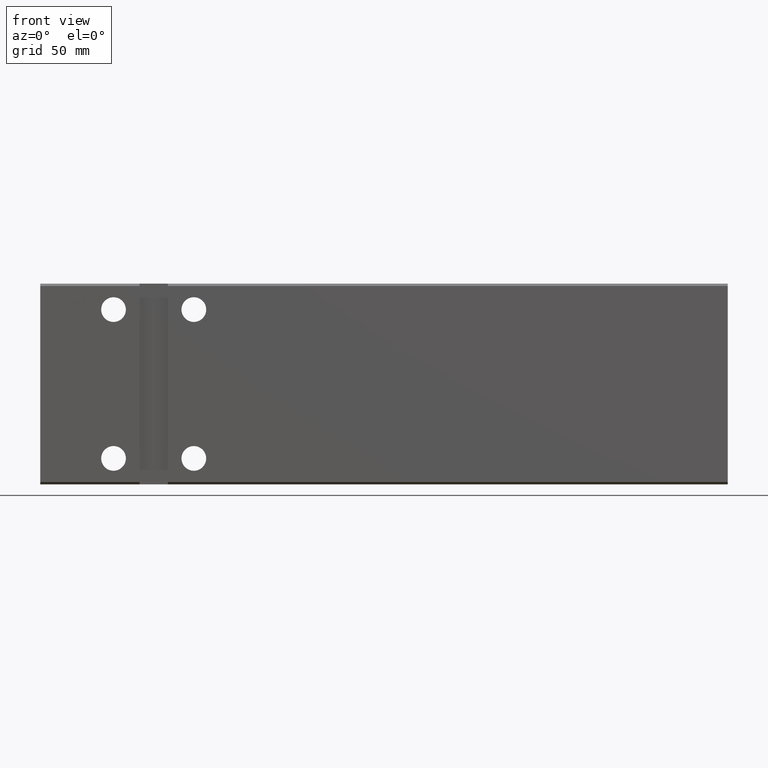
[diagram: clean part render]
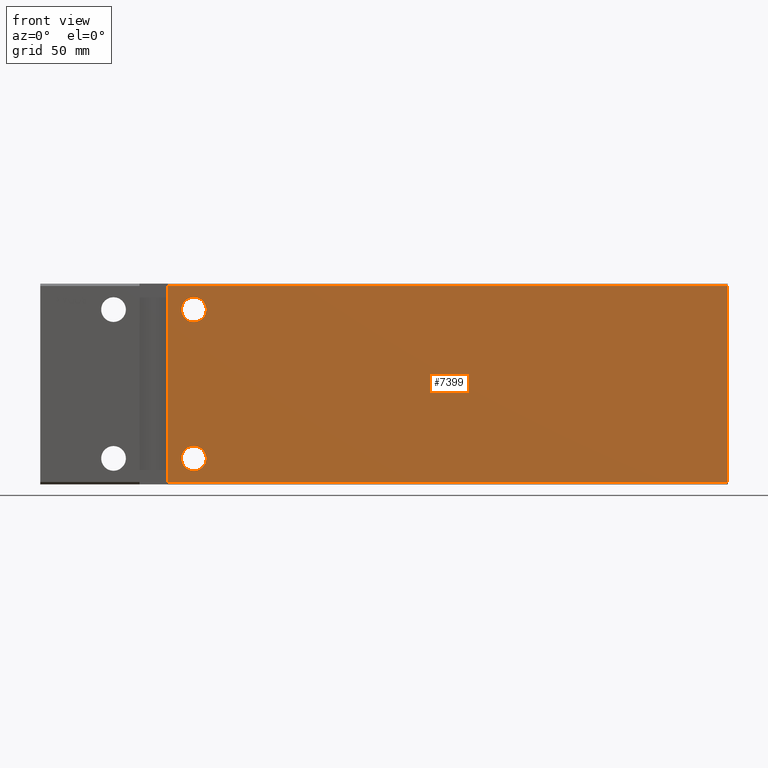
[diagram: same view with one face highlighted and labeled with its STEP entity id]
A machine part, front view. The second image highlights one B-rep face of the part: STEP entity #7399.
In plain terms, the highlighted planar face has unit normal (-0, 1, 0).
Its self-contained STEP definition (entity closure, byte-faithful):
#1200 = CARTESIAN_POINT ( 'NONE',  ( 291.0000000000000000, -31.50000000000000000, 41.49999999999999289 ) ) ;
#2403 = EDGE_CURVE ( 'NONE', #3532, #38642, #20256, .T. ) ;
#3532 = VERTEX_POINT ( 'NONE', #41223 ) ;
#3580 = FACE_OUTER_BOUND ( 'NONE', #14030, .T. ) ;
#3786 = DIRECTION ( 'NONE',  ( 0.000000000000000000, -0.000000000000000000, 1.000000000000000000 ) ) ;
#4414 = CARTESIAN_POINT ( 'NONE',  ( 291.0000000000000000, -31.50000000000000000, -41.50000000000000711 ) ) ;
#4573 = DIRECTION ( 'NONE',  ( -1.000000000000000000, -0.000000000000000000, -0.000000000000000000 ) ) ;
#4607 = CARTESIAN_POINT ( 'NONE',  ( 291.0000000000000000, -31.50000000000000000, 41.49999999999999289 ) ) ;
#5830 = CARTESIAN_POINT ( 'NONE',  ( 54.00000000000000000, -31.50000000000000000, 41.49999999999999289 ) ) ;
#6490 = CARTESIAN_POINT ( 'NONE',  ( 65.00000000000000000, -31.50000000000000000, 36.75000000000000711 ) ) ;
#6647 = EDGE_CURVE ( 'NONE', #26692, #19339, #33789, .T. ) ;
#7399 = ADVANCED_FACE ( 'NONE', ( #32758, #3580, #17631 ), #20394, .F. ) ;
#7879 = ORIENTED_EDGE ( 'NONE', *, *, #6647, .T. ) ;
#8307 = DIRECTION ( 'NONE',  ( 0.000000000000000000, 0.000000000000000000, -1.000000000000000000 ) ) ;
#10074 = AXIS2_PLACEMENT_3D ( 'NONE', #33397, #29192, #20024 ) ;
#10869 = ORIENTED_EDGE ( 'NONE', *, *, #11239, .F. ) ;
#10904 = VECTOR ( 'NONE', #39654, 1000.000000000000000 ) ;
#10907 = LINE ( 'NONE', #30089, #10904 ) ;
#11239 = EDGE_CURVE ( 'NONE', #18120, #19339, #10907, .T. ) ;
#13003 = DIRECTION ( 'NONE',  ( -0.000000000000000000, 1.000000000000000000, 0.000000000000000000 ) ) ;
#13024 = CARTESIAN_POINT ( 'NONE',  ( 65.00000000000001421, -31.50000000000000000, -31.50000000000000000 ) ) ;
#14030 = EDGE_LOOP ( 'NONE', ( #7879, #10869, #32926, #24401 ) ) ;
#14460 = EDGE_CURVE ( 'NONE', #24346, #18120, #19961, .T. ) ;
#14934 = EDGE_CURVE ( 'NONE', #39153, #24843, #34705, .T. ) ;
#15710 = AXIS2_PLACEMENT_3D ( 'NONE', #19595, #13003, #22385 ) ;
#15802 = DIRECTION ( 'NONE',  ( 0.000000000000000000, 0.000000000000000000, 1.000000000000000000 ) ) ;
#16420 = CIRCLE ( 'NONE', #24577, 5.250000000000004441 ) ;
#17119 = VECTOR ( 'NONE', #4573, 1000.000000000000000 ) ;
#17625 = DIRECTION ( 'NONE',  ( -1.000000000000000000, -0.000000000000000000, -0.000000000000000000 ) ) ;
#17631 = FACE_BOUND ( 'NONE', #28712, .T. ) ;
#17901 = LINE ( 'NONE', #18540, #30162 ) ;
#18100 = EDGE_CURVE ( 'NONE', #38642, #3532, #19839, .T. ) ;
#18120 = VERTEX_POINT ( 'NONE', #28895 ) ;
#18540 = CARTESIAN_POINT ( 'NONE',  ( 291.0000000000000000, -31.50000000000000000, 41.49999999999999289 ) ) ;
#19339 = VERTEX_POINT ( 'NONE', #5830 ) ;
#19595 = CARTESIAN_POINT ( 'NONE',  ( 65.00000000000001421, -31.50000000000000000, -31.50000000000000000 ) ) ;
#19839 = CIRCLE ( 'NONE', #22552, 5.250000000000004441 ) ;
#19961 = LINE ( 'NONE', #30159, #17119 ) ;
#20024 = DIRECTION ( 'NONE',  ( 0.000000000000000000, 0.000000000000000000, 1.000000000000000000 ) ) ;
#20256 = CIRCLE ( 'NONE', #10074, 5.250000000000004441 ) ;
#20339 = AXIS2_PLACEMENT_3D ( 'NONE', #1200, #36990, #3786 ) ;
#20394 = PLANE ( 'NONE',  #20339 ) ;
#21876 = CARTESIAN_POINT ( 'NONE',  ( 65.00000000000000000, -31.50000000000000000, 31.50000000000000000 ) ) ;
#22385 = DIRECTION ( 'NONE',  ( 0.000000000000000000, 0.000000000000000000, 1.000000000000000000 ) ) ;
#22552 = AXIS2_PLACEMENT_3D ( 'NONE', #21876, #31236, #41635 ) ;
#22964 = CARTESIAN_POINT ( 'NONE',  ( 65.00000000000001421, -31.50000000000000000, -36.75000000000000711 ) ) ;
#23118 = EDGE_CURVE ( 'NONE', #26692, #24346, #17901, .T. ) ;
#24346 = VERTEX_POINT ( 'NONE', #4414 ) ;
#24401 = ORIENTED_EDGE ( 'NONE', *, *, #23118, .F. ) ;
#24577 = AXIS2_PLACEMENT_3D ( 'NONE', #13024, #38979, #15802 ) ;
#24843 = VERTEX_POINT ( 'NONE', #39824 ) ;
#25143 = VECTOR ( 'NONE', #17625, 1000.000000000000000 ) ;
#26692 = VERTEX_POINT ( 'NONE', #32603 ) ;
#28593 = EDGE_CURVE ( 'NONE', #24843, #39153, #16420, .T. ) ;
#28712 = EDGE_LOOP ( 'NONE', ( #35848, #32880 ) ) ;
#28895 = CARTESIAN_POINT ( 'NONE',  ( 54.00000000000000000, -31.50000000000000000, -41.50000000000000711 ) ) ;
#29192 = DIRECTION ( 'NONE',  ( 0.000000000000000000, -1.000000000000000000, -0.000000000000000000 ) ) ;
#29642 = ORIENTED_EDGE ( 'NONE', *, *, #28593, .T. ) ;
#30089 = CARTESIAN_POINT ( 'NONE',  ( 54.00000000000000000, -31.50000000000000000, 42.49999999999999289 ) ) ;
#30159 = CARTESIAN_POINT ( 'NONE',  ( 291.0000000000000000, -31.50000000000000000, -41.50000000000000711 ) ) ;
#30162 = VECTOR ( 'NONE', #8307, 1000.000000000000000 ) ;
#31236 = DIRECTION ( 'NONE',  ( 0.000000000000000000, -1.000000000000000000, -0.000000000000000000 ) ) ;
#32603 = CARTESIAN_POINT ( 'NONE',  ( 291.0000000000000000, -31.50000000000000000, 41.49999999999999289 ) ) ;
#32758 = FACE_BOUND ( 'NONE', #41553, .T. ) ;
#32880 = ORIENTED_EDGE ( 'NONE', *, *, #18100, .F. ) ;
#32926 = ORIENTED_EDGE ( 'NONE', *, *, #14460, .F. ) ;
#33397 = CARTESIAN_POINT ( 'NONE',  ( 65.00000000000000000, -31.50000000000000000, 31.50000000000000000 ) ) ;
#33789 = LINE ( 'NONE', #4607, #25143 ) ;
#34705 = CIRCLE ( 'NONE', #15710, 5.250000000000004441 ) ;
#35848 = ORIENTED_EDGE ( 'NONE', *, *, #2403, .F. ) ;
#36990 = DIRECTION ( 'NONE',  ( -0.000000000000000000, 1.000000000000000000, 0.000000000000000000 ) ) ;
#38642 = VERTEX_POINT ( 'NONE', #6490 ) ;
#38979 = DIRECTION ( 'NONE',  ( -0.000000000000000000, 1.000000000000000000, 0.000000000000000000 ) ) ;
#39153 = VERTEX_POINT ( 'NONE', #22964 ) ;
#39654 = DIRECTION ( 'NONE',  ( -0.000000000000000000, -0.000000000000000000, 1.000000000000000000 ) ) ;
#39824 = CARTESIAN_POINT ( 'NONE',  ( 65.00000000000001421, -31.50000000000000000, -26.24999999999999645 ) ) ;
#40884 = ORIENTED_EDGE ( 'NONE', *, *, #14934, .T. ) ;
#41223 = CARTESIAN_POINT ( 'NONE',  ( 65.00000000000000000, -31.50000000000000000, 26.24999999999999645 ) ) ;
#41553 = EDGE_LOOP ( 'NONE', ( #40884, #29642 ) ) ;
#41635 = DIRECTION ( 'NONE',  ( 0.000000000000000000, 0.000000000000000000, 1.000000000000000000 ) ) ;